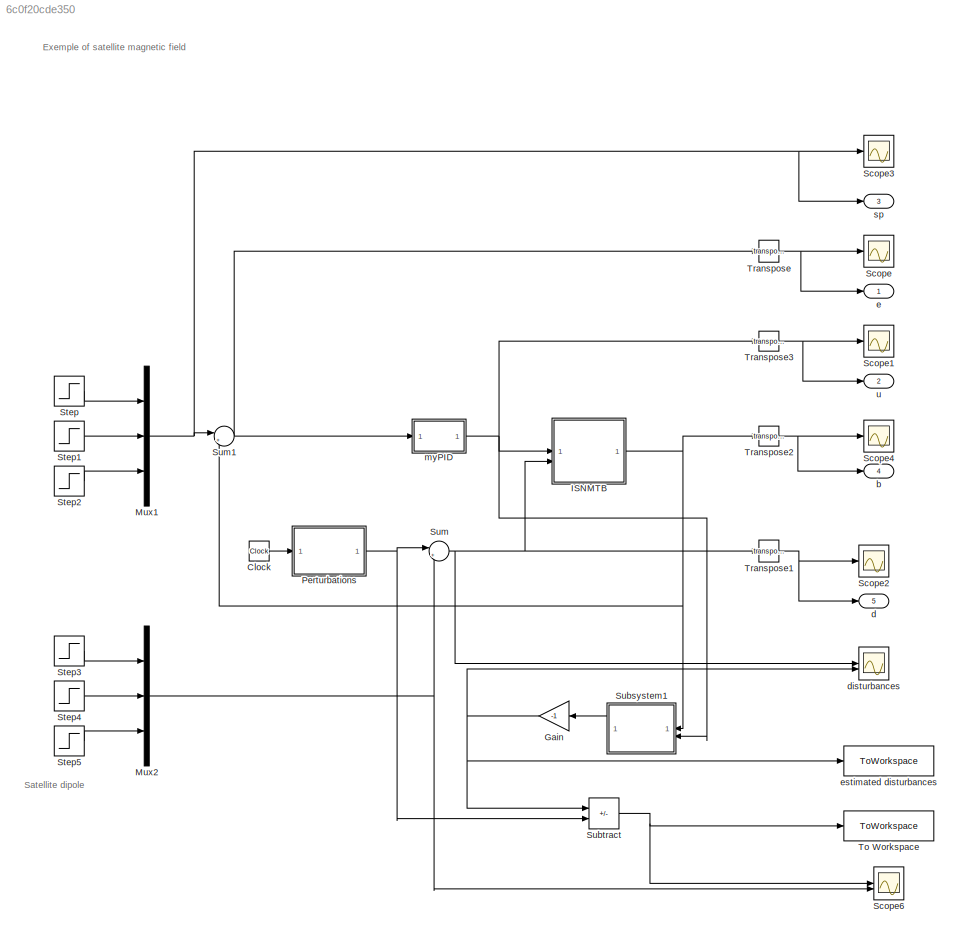
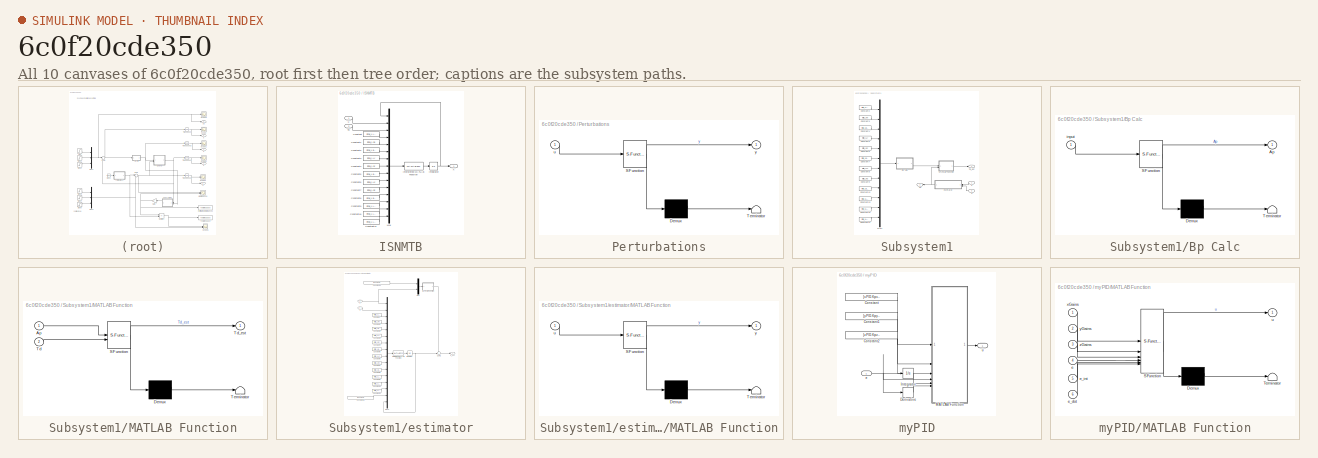
[diagram: thumbnail index - all 10 canvases of the model, root first then tree order]
MODEL slx_6c0f20cde350
KIND model
CONFIG AbsTol = auto
CONFIG EnableMultiTasking = off
CONFIG FixedStep = 1E-5
CONFIG MaxStep = auto
CONFIG MinStep = 1E-4
CONFIG RelTol = 1e-3
CONFIG SampleTimeConstraint = Unconstrained
CONFIG SolverName = VariableStepAuto
CONFIG StartTime = 0.0
CONFIG StopTime = 1000
BLOCK [Clock] Clock
  Decimation = 1000
BLOCK [Gain] Gain
  Gain = -1
  NameLocation = top
BLOCK [SubSystem] ISNMTB
BLOCK [Constant] ISNMTB/Constant
  Value = initial_1.Lx
BLOCK [Constant] ISNMTB/Constant1
  Value = initial_1.Rx
BLOCK [Constant] ISNMTB/Constant10
  Value = initial_1.Lxz
BLOCK [Constant] ISNMTB/Constant11
  Value = initial_1.Lzy
BLOCK [Constant] ISNMTB/Constant2
  Value = initial_1.B_x
BLOCK [Constant] ISNMTB/Constant3
  Value = initial_1.Ly
BLOCK [Constant] ISNMTB/Constant4
  Value = initial_1.Ry
BLOCK [Constant] ISNMTB/Constant5
  Value = initial_1.B_y
BLOCK [Constant] ISNMTB/Constant6
  Value = initial_1.Lz
BLOCK [Constant] ISNMTB/Constant7
  Value = initial_1.Rz
BLOCK [Constant] ISNMTB/Constant8
  Value = initial_1.B_z
BLOCK [Constant] ISNMTB/Constant9
  Value = initial_1.Lxy
BLOCK [Integrator] ISNMTB/Integrator
  InitialCondition = [3.249E4, -2.265E4, 3.655E4]
BLOCK [MATLABFcn] ISNMTB/Interpreted MATLAB Function
  MATLABFcn = is501nmtbModel_simu
BLOCK [Mux] ISNMTB/Mux
  DisplayOption = bar
  Inputs = 15
BLOCK [Inport] ISNMTB/Td
  Port = 2
BLOCK [Outport] ISNMTB/X
BLOCK [Inport] ISNMTB/u
BLOCK [Mux] Mux1
  DisplayOption = bar
  Inputs = 3
BLOCK [Mux] Mux2
  DisplayOption = bar
  Inputs = 3
BLOCK [SubSystem] Perturbations
  ErrorFcn = Stateflow.Translate.translate
  PermitHierarchicalResolution = ExplicitOnly
  SFBlockType = MATLAB Function
  TreatAsAtomicUnit = on
BLOCK [Demux] Perturbations/ Demux 
  Outputs = 1
BLOCK [S-Function] Perturbations/ SFunction 
  EnableBusSupport = on
  FunctionName = sf_sfun
  PortCounts = [1 2]
  SFcnIsStateOwnerBlock = off
  SFunctionDeploymentMode = off
  Tag = Stateflow S-Function 2
BLOCK [Terminator] Perturbations/ Terminator 
BLOCK [Inport] Perturbations/u
BLOCK [Outport] Perturbations/y
BLOCK [Scope] Scope
  Floating = off
  NumInputPorts = 1
  ScopeSpecificationString = Simulink.scopes.TimeScopeBlockCfg('CurrentConfiguration', extmgr.ConfigurationSet(extmgr.Configuration('Core','General UI',true),extmgr.Configuration('Core','Source UI',true),extmgr.Configuration('Sources','WiredSimulink',true,'DataLoggingVariableName','ScopeData1'),extmgr.Configuration('Visuals','Time Domain',true,'SerializedDisplays',{struct('MinYLimReal','-44611.38548','MaxYLimReal','35917.6435...<+1588ch>
BLOCK [Scope] Scope1
  Floating = off
  NumInputPorts = 1
  ScopeSpecificationString = Simulink.scopes.TimeScopeBlockCfg('CurrentConfiguration', extmgr.ConfigurationSet(extmgr.Configuration('Core','General UI',true),extmgr.Configuration('Core','Source UI',true),extmgr.Configuration('Sources','WiredSimulink',true,'DataLoggingVariableName','ScopeData2'),extmgr.Configuration('Visuals','Time Domain',true,'SerializedDisplays',{struct('MinYLimReal','-26.68857','MaxYLimReal','22.74287','YL...<+1596ch>
BLOCK [Scope] Scope2
  Floating = off
  NumInputPorts = 1
  ScopeSpecificationString = Simulink.scopes.TimeScopeBlockCfg('CurrentConfiguration', extmgr.ConfigurationSet(extmgr.Configuration('Core','General UI',true),extmgr.Configuration('Core','Source UI',true),extmgr.Configuration('Sources','WiredSimulink',true,'DataLoggingVariableName','ScopeData1'),extmgr.Configuration('Visuals','Time Domain',true),extmgr.Configuration('Tools','Plot Navigation',true),extmgr.Configuration('Tools',...<+40ch>
BLOCK [Scope] Scope3
  Floating = off
  NumInputPorts = 1
  ScopeSpecificationString = Simulink.scopes.TimeScopeBlockCfg('CurrentConfiguration', extmgr.ConfigurationSet(extmgr.Configuration('Core','General UI',true),extmgr.Configuration('Core','Source UI',true),extmgr.Configuration('Sources','WiredSimulink',true,'DataLoggingVariableName','ScopeData1'),extmgr.Configuration('Visuals','Time Domain',true,'SerializedDisplays',{struct('MinYLimReal','-0.00565','MaxYLimReal','0.01585','YLab...<+1539ch>
BLOCK [Scope] Scope4
  Floating = off
  NumInputPorts = 1
  ScopeSpecificationString = Simulink.scopes.TimeScopeBlockCfg('CurrentConfiguration', extmgr.ConfigurationSet(extmgr.Configuration('Core','General UI',true),extmgr.Configuration('Core','Source UI',true),extmgr.Configuration('Sources','WiredSimulink',true,'DataLoggingVariableName','ScopeData4'),extmgr.Configuration('Visuals','Time Domain',true,'SerializedDisplays',{struct('MinYLimReal','-2.23021','MaxYLimReal','8.60177','YLab...<+1563ch>
BLOCK [Scope] Scope6
  Floating = off
  NumInputPorts = 2
  ScopeSpecificationString = Simulink.scopes.TimeScopeBlockCfg('CurrentConfiguration', extmgr.ConfigurationSet(extmgr.Configuration('Core','General UI',true),extmgr.Configuration('Core','Source UI',true),extmgr.Configuration('Sources','WiredSimulink',true,'DataLoggingVariableName','ScopeData2'),extmgr.Configuration('Visuals','Time Domain',true,'SerializedDisplays',{struct('MinYLimReal','-160.87048','MaxYLimReal','-72.48577','...<+1730ch>
BLOCK [Step] Step
  After = 0
  SampleTime = 0
  Time = 0.1
BLOCK [Step] Step1
  After = 0
  SampleTime = 0
  Time = 0.1
BLOCK [Step] Step2
  After = 0
  SampleTime = 0
  Time = 0.1
BLOCK [Step] Step3
  After = 10
  SampleTime = 0
  Time = 5
BLOCK [Step] Step4
  After = 20
  SampleTime = 0
  Time = 5
BLOCK [Step] Step5
  After = 30
  SampleTime = 0
  Time = 5
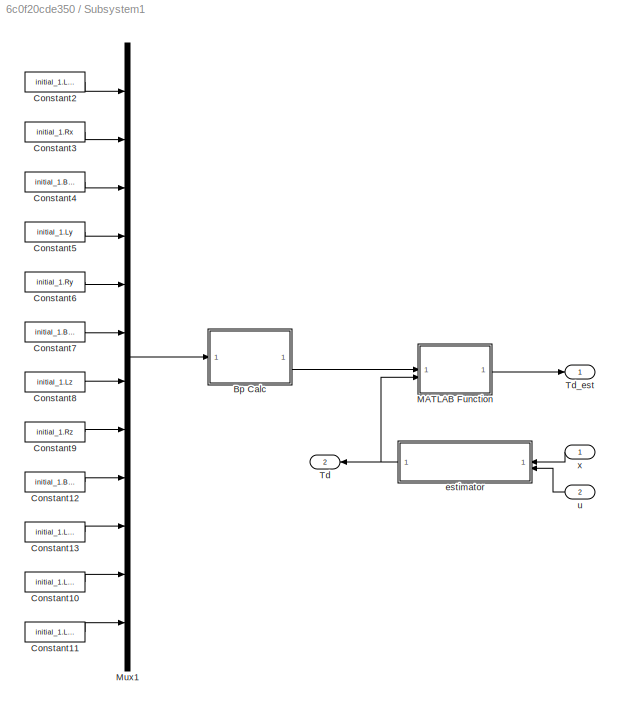
BLOCK [SubSystem] Subsystem1
  NameLocation = top
BLOCK [SubSystem] Subsystem1/Bp Calc
  ErrorFcn = Stateflow.Translate.translate
  PermitHierarchicalResolution = ExplicitOnly
  SFBlockType = MATLAB Function
  TreatAsAtomicUnit = on
BLOCK [Demux] Subsystem1/Bp Calc/ Demux 
  Outputs = 1
BLOCK [S-Function] Subsystem1/Bp Calc/ SFunction 
  EnableBusSupport = on
  FunctionName = sf_sfun
  PortCounts = [1 2]
  SFcnIsStateOwnerBlock = off
  SFunctionDeploymentMode = off
  Tag = Stateflow S-Function 4
BLOCK [Terminator] Subsystem1/Bp Calc/ Terminator 
BLOCK [Outport] Subsystem1/Bp Calc/Ap
BLOCK [Inport] Subsystem1/Bp Calc/input
BLOCK [Constant] Subsystem1/Constant10
  Value = initial_1.Lxz
BLOCK [Constant] Subsystem1/Constant11
  Value = initial_1.Lzy
BLOCK [Constant] Subsystem1/Constant12
  Value = initial_1.B_z
BLOCK [Constant] Subsystem1/Constant13
  Value = initial_1.Lxy
BLOCK [Constant] Subsystem1/Constant2
  Value = initial_1.Lx
BLOCK [Constant] Subsystem1/Constant3
  Value = initial_1.Rx
BLOCK [Constant] Subsystem1/Constant4
  Value = initial_1.B_x
BLOCK [Constant] Subsystem1/Constant5
  Value = initial_1.Ly
BLOCK [Constant] Subsystem1/Constant6
  Value = initial_1.Ry
BLOCK [Constant] Subsystem1/Constant7
  Value = initial_1.B_y
BLOCK [Constant] Subsystem1/Constant8
  Value = initial_1.Lz
BLOCK [Constant] Subsystem1/Constant9
  Value = initial_1.Rz
BLOCK [SubSystem] Subsystem1/MATLAB Function
  ErrorFcn = Stateflow.Translate.translate
  PermitHierarchicalResolution = ExplicitOnly
  SFBlockType = MATLAB Function
  TreatAsAtomicUnit = on
BLOCK [Demux] Subsystem1/MATLAB Function/ Demux 
  Outputs = 1
BLOCK [S-Function] Subsystem1/MATLAB Function/ SFunction 
  EnableBusSupport = on
  FunctionName = sf_sfun
  PortCounts = [2 2]
  SFcnIsStateOwnerBlock = off
  SFunctionDeploymentMode = off
  Tag = Stateflow S-Function 5
BLOCK [Terminator] Subsystem1/MATLAB Function/ Terminator 
BLOCK [Inport] Subsystem1/MATLAB Function/Ap
BLOCK [Inport] Subsystem1/MATLAB Function/Td
  Port = 2
BLOCK [Outport] Subsystem1/MATLAB Function/Td_est
BLOCK [Mux] Subsystem1/Mux1
  DisplayOption = bar
  Inputs = 12
BLOCK [Outport] Subsystem1/Td
  NameLocation = top
  Port = 2
BLOCK [Outport] Subsystem1/Td_est
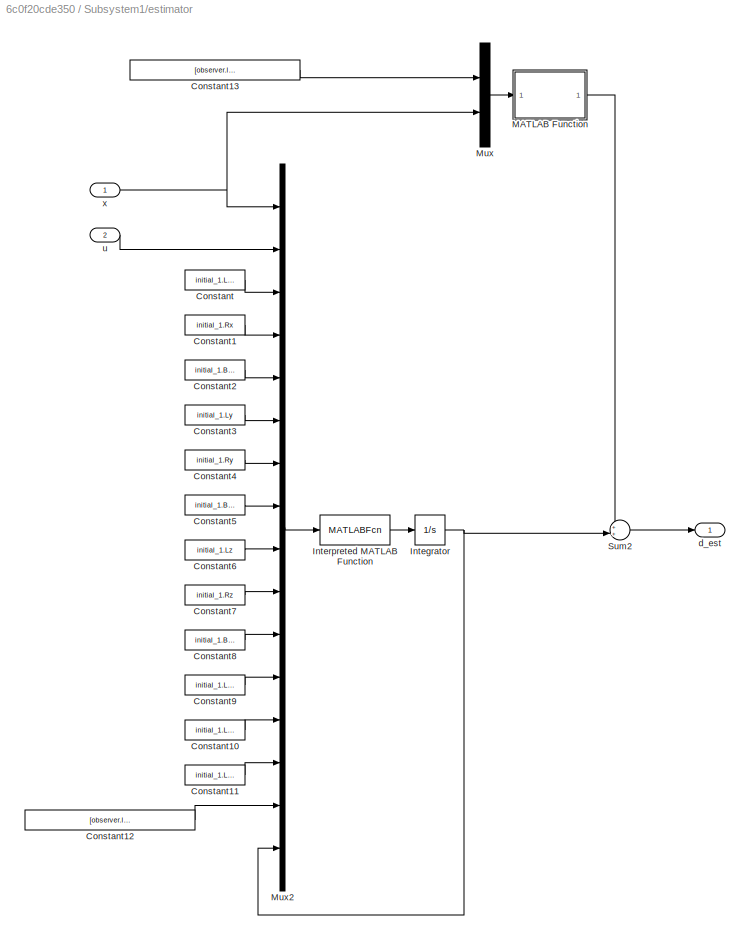
BLOCK [SubSystem] Subsystem1/estimator
  NameLocation = top
BLOCK [Constant] Subsystem1/estimator/Constant
  Value = initial_1.Lx
BLOCK [Constant] Subsystem1/estimator/Constant1
  Value = initial_1.Rx
BLOCK [Constant] Subsystem1/estimator/Constant10
  Value = initial_1.Lxz
BLOCK [Constant] Subsystem1/estimator/Constant11
  Value = initial_1.Lzy
BLOCK [Constant] Subsystem1/estimator/Constant12
  Value = [observer.l1,observer.l2,observer.l3]
BLOCK [Constant] Subsystem1/estimator/Constant13
  Value = [observer.l1,observer.l2,observer.l3]
BLOCK [Constant] Subsystem1/estimator/Constant2
  Value = initial_1.B_x
BLOCK [Constant] Subsystem1/estimator/Constant3
  Value = initial_1.Ly
BLOCK [Constant] Subsystem1/estimator/Constant4
  Value = initial_1.Ry
BLOCK [Constant] Subsystem1/estimator/Constant5
  Value = initial_1.B_y
BLOCK [Constant] Subsystem1/estimator/Constant6
  Value = initial_1.Lz
BLOCK [Constant] Subsystem1/estimator/Constant7
  Value = initial_1.Rz
BLOCK [Constant] Subsystem1/estimator/Constant8
  Value = initial_1.B_z
BLOCK [Constant] Subsystem1/estimator/Constant9
  Value = initial_1.Lxy
BLOCK [Integrator] Subsystem1/estimator/Integrator
  InitialCondition = [0,0,0]
BLOCK [MATLABFcn] Subsystem1/estimator/Interpreted MATLAB Function
  MATLABFcn = Dist_observer
BLOCK [SubSystem] Subsystem1/estimator/MATLAB Function
  ErrorFcn = Stateflow.Translate.translate
  PermitHierarchicalResolution = ExplicitOnly
  SFBlockType = MATLAB Function
  TreatAsAtomicUnit = on
BLOCK [Demux] Subsystem1/estimator/MATLAB Function/ Demux 
  Outputs = 1
BLOCK [S-Function] Subsystem1/estimator/MATLAB Function/ SFunction 
  EnableBusSupport = on
  FunctionName = sf_sfun
  PortCounts = [1 2]
  SFcnIsStateOwnerBlock = off
  SFunctionDeploymentMode = off
  Tag = Stateflow S-Function 3
BLOCK [Terminator] Subsystem1/estimator/MATLAB Function/ Terminator 
BLOCK [Inport] Subsystem1/estimator/MATLAB Function/u
BLOCK [Outport] Subsystem1/estimator/MATLAB Function/y
BLOCK [Mux] Subsystem1/estimator/Mux
  DisplayOption = bar
  Inputs = 2
BLOCK [Mux] Subsystem1/estimator/Mux2
  DisplayOption = bar
  Inputs = 16
BLOCK [Sum] Subsystem1/estimator/Sum2
  Inputs = ++|
BLOCK [Outport] Subsystem1/estimator/d_est
BLOCK [Inport] Subsystem1/estimator/u
  Port = 2
BLOCK [Inport] Subsystem1/estimator/x
BLOCK [Inport] Subsystem1/u
  NameLocation = top
  Port = 2
BLOCK [Inport] Subsystem1/x
  NameLocation = top
BLOCK [Sum] Subtract
  IconShape = rectangular
  Inputs = +-
BLOCK [Sum] Sum
  Inputs = |++
BLOCK [Sum] Sum1
  Inputs = |+-
BLOCK [ToWorkspace] To Workspace
  FixptAsFi = on
  MaxDataPoints = inf
  SampleTime = -1
  VariableName = simout
BLOCK [Math] Transpose
  Operator = transpose
BLOCK [Math] Transpose1
  Operator = transpose
BLOCK [Math] Transpose2
  Operator = transpose
BLOCK [Math] Transpose3
  Operator = transpose
BLOCK [Outport] b
  Port = 4
BLOCK [Outport] d
  Port = 5
BLOCK [Scope] disturbances
  Floating = off
  NumInputPorts = 2
  ScopeSpecificationString = Simulink.scopes.TimeScopeBlockCfg('CurrentConfiguration', extmgr.ConfigurationSet(extmgr.Configuration('Core','General UI',true),extmgr.Configuration('Core','Source UI',true),extmgr.Configuration('Sources','WiredSimulink',true,'DataLoggingVariableName','ScopeData1'),extmgr.Configuration('Visuals','Time Domain',true,'SerializedDisplays',{struct('MinYLimReal','-30051.08692','MaxYLimReal','43950.8420...<+1734ch>
BLOCK [Outport] e
BLOCK [ToWorkspace] estimated disturbances
  FixptAsFi = on
  MaxDataPoints = inf
  SampleTime = -1
  VariableName = simout1
BLOCK [SubSystem] myPID
BLOCK [Constant] myPID/Constant
  Value = [x.PID.Kp;x.PID.Ki;x.PID.Kd]
BLOCK [Constant] myPID/Constant1
  Value = [y.PID.Kp;y.PID.Ki;y.PID.Kd]
BLOCK [Constant] myPID/Constant2
  Value = [z.PID.Kp;z.PID.Ki;z.PID.Kd]
BLOCK [Derivative] myPID/Derivative
BLOCK [Integrator] myPID/Integrator
BLOCK [SubSystem] myPID/MATLAB Function
  ErrorFcn = Stateflow.Translate.translate
  PermitHierarchicalResolution = ExplicitOnly
  SFBlockType = MATLAB Function
  TreatAsAtomicUnit = on
BLOCK [Demux] myPID/MATLAB Function/ Demux 
  Outputs = 1
BLOCK [S-Function] myPID/MATLAB Function/ SFunction 
  EnableBusSupport = on
  FunctionName = sf_sfun
  PortCounts = [6 2]
  SFcnIsStateOwnerBlock = off
  SFunctionDeploymentMode = off
  Tag = Stateflow S-Function 9
BLOCK [Terminator] myPID/MATLAB Function/ Terminator 
BLOCK [Inport] myPID/MATLAB Function/e
  Port = 4
BLOCK [Inport] myPID/MATLAB Function/e_dot
  Port = 6
BLOCK [Inport] myPID/MATLAB Function/e_int
  Port = 5
BLOCK [Outport] myPID/MATLAB Function/u
BLOCK [Inport] myPID/MATLAB Function/xGains
BLOCK [Inport] myPID/MATLAB Function/yGains
  Port = 2
BLOCK [Inport] myPID/MATLAB Function/zGains
  Port = 3
BLOCK [Inport] myPID/e
BLOCK [Outport] myPID/u
BLOCK [Outport] sp
  Port = 3
BLOCK [Outport] u
  Port = 2
ANNOTATION (root): Satellite dipole
ANNOTATION (root): Exemple of satellite magnetic field
LINE Clock:1 -> Perturbations:1
NET Gain:1 -> Subtract:1, disturbances:2, estimated disturbances:1
LINE ISNMTB/Constant10:1 -> ISNMTB/Mux:14
LINE ISNMTB/Constant11:1 -> ISNMTB/Mux:15
LINE ISNMTB/Constant1:1 -> ISNMTB/Mux:5
LINE ISNMTB/Constant2:1 -> ISNMTB/Mux:6
LINE ISNMTB/Constant3:1 -> ISNMTB/Mux:7
LINE ISNMTB/Constant4:1 -> ISNMTB/Mux:8
LINE ISNMTB/Constant5:1 -> ISNMTB/Mux:9
LINE ISNMTB/Constant6:1 -> ISNMTB/Mux:10
LINE ISNMTB/Constant7:1 -> ISNMTB/Mux:11
LINE ISNMTB/Constant8:1 -> ISNMTB/Mux:12
LINE ISNMTB/Constant9:1 -> ISNMTB/Mux:13
LINE ISNMTB/Constant:1 -> ISNMTB/Mux:4
NET ISNMTB/Integrator:1 -> ISNMTB/Mux:1, ISNMTB/X:1
LINE ISNMTB/Interpreted MATLAB Function:1 -> ISNMTB/Integrator:1
LINE ISNMTB/Mux:1 -> ISNMTB/Interpreted MATLAB Function:1
LINE ISNMTB/Td:1 -> ISNMTB/Mux:3
LINE ISNMTB/u:1 -> ISNMTB/Mux:2
NET ISNMTB:1 -> Subsystem1:1, Sum1:2, Transpose2:1
NET Mux1:1 -> Scope3:1, Sum1:1, sp:1
NET Mux2:1 -> Scope6:2, Sum:2
NET Perturbations:1 -> Subtract:2, Sum:1
LINE Step1:1 -> Mux1:2
LINE Step2:1 -> Mux1:3
LINE Step3:1 -> Mux2:1
LINE Step4:1 -> Mux2:2
LINE Step5:1 -> Mux2:3
LINE Step:1 -> Mux1:1
LINE Subsystem1/Bp Calc:1 -> Subsystem1/MATLAB Function:1
LINE Subsystem1/Constant10:1 -> Subsystem1/Mux1:11
LINE Subsystem1/Constant11:1 -> Subsystem1/Mux1:12
LINE Subsystem1/Constant12:1 -> Subsystem1/Mux1:9
LINE Subsystem1/Constant13:1 -> Subsystem1/Mux1:10
LINE Subsystem1/Constant2:1 -> Subsystem1/Mux1:1
LINE Subsystem1/Constant3:1 -> Subsystem1/Mux1:2
LINE Subsystem1/Constant4:1 -> Subsystem1/Mux1:3
LINE Subsystem1/Constant5:1 -> Subsystem1/Mux1:4
LINE Subsystem1/Constant6:1 -> Subsystem1/Mux1:5
LINE Subsystem1/Constant7:1 -> Subsystem1/Mux1:6
LINE Subsystem1/Constant8:1 -> Subsystem1/Mux1:7
LINE Subsystem1/Constant9:1 -> Subsystem1/Mux1:8
LINE Subsystem1/MATLAB Function:1 -> Subsystem1/Td_est:1
LINE Subsystem1/Mux1:1 -> Subsystem1/Bp Calc:1
LINE Subsystem1/estimator/Constant10:1 -> Subsystem1/estimator/Mux2:13
LINE Subsystem1/estimator/Constant11:1 -> Subsystem1/estimator/Mux2:14
LINE Subsystem1/estimator/Constant12:1 -> Subsystem1/estimator/Mux2:15
LINE Subsystem1/estimator/Constant13:1 -> Subsystem1/estimator/Mux:1
LINE Subsystem1/estimator/Constant1:1 -> Subsystem1/estimator/Mux2:4
LINE Subsystem1/estimator/Constant2:1 -> Subsystem1/estimator/Mux2:5
LINE Subsystem1/estimator/Constant3:1 -> Subsystem1/estimator/Mux2:6
LINE Subsystem1/estimator/Constant4:1 -> Subsystem1/estimator/Mux2:7
LINE Subsystem1/estimator/Constant5:1 -> Subsystem1/estimator/Mux2:8
LINE Subsystem1/estimator/Constant6:1 -> Subsystem1/estimator/Mux2:9
LINE Subsystem1/estimator/Constant7:1 -> Subsystem1/estimator/Mux2:10
LINE Subsystem1/estimator/Constant8:1 -> Subsystem1/estimator/Mux2:11
LINE Subsystem1/estimator/Constant9:1 -> Subsystem1/estimator/Mux2:12
LINE Subsystem1/estimator/Constant:1 -> Subsystem1/estimator/Mux2:3
NET Subsystem1/estimator/Integrator:1 -> Subsystem1/estimator/Mux2:16, Subsystem1/estimator/Sum2:2
LINE Subsystem1/estimator/Interpreted MATLAB Function:1 -> Subsystem1/estimator/Integrator:1
LINE Subsystem1/estimator/MATLAB Function:1 -> Subsystem1/estimator/Sum2:1
LINE Subsystem1/estimator/Mux2:1 -> Subsystem1/estimator/Interpreted MATLAB Function:1
LINE Subsystem1/estimator/Mux:1 -> Subsystem1/estimator/MATLAB Function:1
LINE Subsystem1/estimator/Sum2:1 -> Subsystem1/estimator/d_est:1
LINE Subsystem1/estimator/u:1 -> Subsystem1/estimator/Mux2:2
NET Subsystem1/estimator/x:1 -> Subsystem1/estimator/Mux2:1, Subsystem1/estimator/Mux:2
NET Subsystem1/estimator:1 -> Subsystem1/MATLAB Function:2, Subsystem1/Td:1
LINE Subsystem1/u:1 -> Subsystem1/estimator:2
LINE Subsystem1/x:1 -> Subsystem1/estimator:1
LINE Subsystem1:1 -> Gain:1
NET Subtract:1 -> Scope6:1, To Workspace:1
NET Sum1:1 -> Transpose:1, myPID:1
NET Sum:1 -> ISNMTB:2, Transpose1:1, disturbances:1
NET Transpose1:1 -> Scope2:1, d:1
NET Transpose2:1 -> Scope4:1, b:1
NET Transpose3:1 -> Scope1:1, u:1
NET Transpose:1 -> Scope:1, e:1
LINE myPID/Constant1:1 -> myPID/MATLAB Function:2
LINE myPID/Constant2:1 -> myPID/MATLAB Function:3
LINE myPID/Constant:1 -> myPID/MATLAB Function:1
LINE myPID/Derivative:1 -> myPID/MATLAB Function:6
LINE myPID/Integrator:1 -> myPID/MATLAB Function:5
LINE myPID/MATLAB Function:1 -> myPID/u:1
NET myPID/e:1 -> myPID/Derivative:1, myPID/Integrator:1, myPID/MATLAB Function:4
NET myPID:1 -> ISNMTB:1, Subsystem1:2, Transpose3:1
note: NET lines group one-source signal fan-out (src -> all destinations, sorted); 1:1 wires keep LINE
CHART Perturbations states=1 transitions=1
  STATE_LABEL 'eML_blk_kernel()'
  STATE_LABEL 'SCRIPT:\nfunction y = fcn(u)\ny= [2.522*sin(2*pi*4.788E-3*u)+3.249E04;\n   -5.174*sin(2*pi*7.481E-3*u)-2.265E04;\n    3.359*sin(2*pi*8.378E-3*u)+3.655E04];\nend'
CHART Subsystem1/estimator/MATLAB Function states=1 transitions=1
  STATE_LABEL 'eML_blk_kernel()'
  STATE_LABEL 'SCRIPT:\nfunction y = fcn(u)\nl = diag([u(1),u(2),u(3)]);\nx = [u(4);u(5);u(6)];\n\ny = l*x;\nend\n'
CHART Subsystem1/Bp Calc states=1 transitions=1
  STATE_LABEL 'eML_blk_kernel()'
  STATE_LABEL 'SCRIPT:\nfunction Ap = fcn(input)\n    Lxx =  input(1);\n    Rx  =  input(2);\n    B_1 =  input(3);\n    Lyy =  input(4);\n    Ry  =  input(5);\n    B_2 =  input(6);\n    Lzz =  input(7);\n    Rz  =  input(8);\n    B_3 =  input(9);\n    Lxy =  input(10);\n    Lxz =  input(11);\n    Lzy =  input(12);\n\n    %%%Parameter reading\n    L1 =[Lxx, (B_1/B_2)*Lxy, (B_1/B_3)*Lxz;\n        (B_2/B_1)*Lxy, Lyy, (B_2/B_3)*Lzy;...<+283ch>'
CHART Subsystem1/MATLAB Function states=1 transitions=1
  STATE_LABEL 'eML_blk_kernel()'
  STATE_LABEL 'SCRIPT:\nfunction Td_est = fcn(Ap,Td)\n Td_est = Ap\\Td;\nend'
CHART myPID/MATLAB Function states=1 transitions=1
  STATE_LABEL 'eML_blk_kernel()'
  STATE_LABEL 'SCRIPT:\nfunction u  = Bpid_controller(xGains, yGains, zGains, e, e_int, e_dot) \n    \n    kp = diag([xGains(1),yGains(1),zGains(1)]);\n    ki = diag([xGains(2),yGains(2),zGains(2)]);\n    kd = diag([xGains(3),yGains(3),zGains(3)]);\n\n    u=kp*e+ki*e_int+kd*e_dot;\n\nend\n'
CHART  states=0 transitions=0
CHART  states=0 transitions=0
CHART  states=0 transitions=0
CHART  states=0 transitions=0
CHART  states=0 transitions=0
